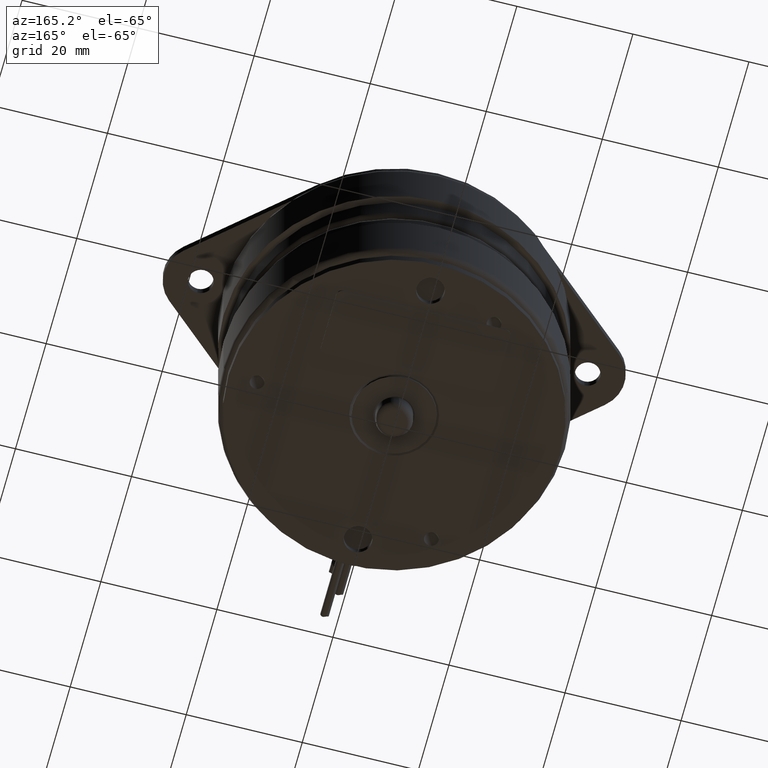
[diagram: clean part render]
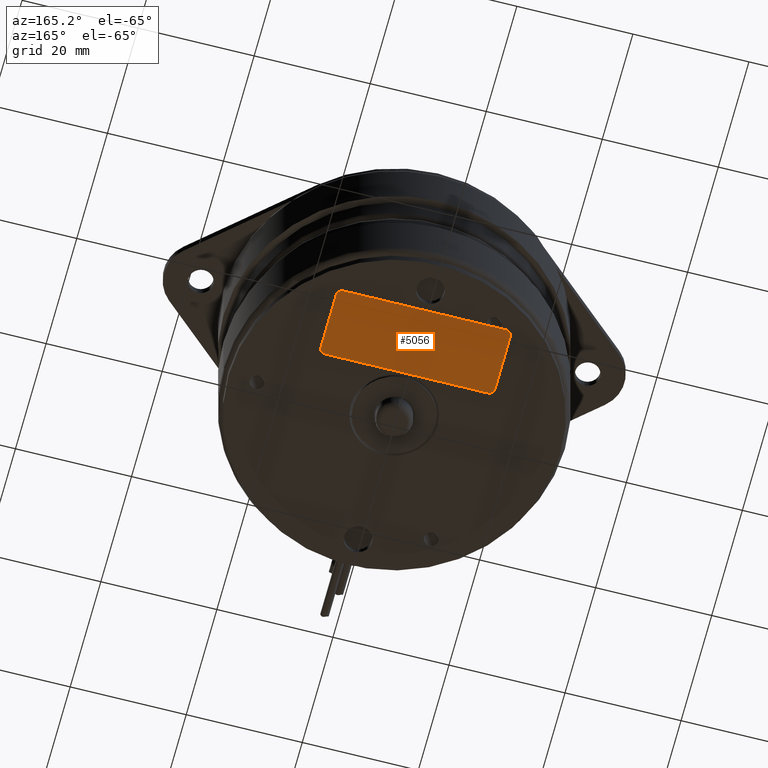
[diagram: same view with one face highlighted and labeled with its STEP entity id]
A machine part, auxiliary view. The second image highlights one B-rep face of the part: STEP entity #5056.
In plain terms, the highlighted planar face has unit normal (0, 0, 1).
Its self-contained STEP definition (entity closure, byte-faithful):
#4897=CARTESIAN_POINT('',(1.4E1,-5.E0,0.E0));
#4898=DIRECTION('',(0.E0,0.E0,1.E0));
#4899=DIRECTION('',(0.E0,-1.E0,0.E0));
#4900=AXIS2_PLACEMENT_3D('',#4897,#4898,#4899);
#4902=CARTESIAN_POINT('',(1.4E1,5.E0,0.E0));
#4903=DIRECTION('',(0.E0,0.E0,1.E0));
#4904=DIRECTION('',(1.E0,0.E0,0.E0));
#4905=AXIS2_PLACEMENT_3D('',#4902,#4903,#4904);
#4907=CARTESIAN_POINT('',(-1.4E1,5.E0,0.E0));
#4908=DIRECTION('',(0.E0,0.E0,1.E0));
#4909=DIRECTION('',(0.E0,1.E0,0.E0));
#4910=AXIS2_PLACEMENT_3D('',#4907,#4908,#4909);
#4912=CARTESIAN_POINT('',(-1.4E1,-5.E0,0.E0));
#4913=DIRECTION('',(0.E0,0.E0,1.E0));
#4914=DIRECTION('',(-1.E0,-2.664535259100E-14,0.E0));
#4915=AXIS2_PLACEMENT_3D('',#4912,#4913,#4914);
#4917=DIRECTION('',(-1.E0,0.E0,0.E0));
#4918=VECTOR('',#4917,2.8E1);
#4919=CARTESIAN_POINT('',(1.4E1,-6.E0,0.E0));
#4920=LINE('',#4919,#4918);
#4929=DIRECTION('',(0.E0,1.E0,0.E0));
#4930=VECTOR('',#4929,1.E1);
#4931=CARTESIAN_POINT('',(-1.5E1,-5.E0,0.E0));
#4932=LINE('',#4931,#4930);
#4941=DIRECTION('',(1.E0,0.E0,0.E0));
#4942=VECTOR('',#4941,2.8E1);
#4943=CARTESIAN_POINT('',(-1.4E1,6.E0,0.E0));
#4944=LINE('',#4943,#4942);
#4953=DIRECTION('',(0.E0,-1.E0,0.E0));
#4954=VECTOR('',#4953,1.E1);
#4955=CARTESIAN_POINT('',(1.5E1,5.E0,0.E0));
#4956=LINE('',#4955,#4954);
#5001=CARTESIAN_POINT('',(1.4E1,-6.E0,0.E0));
#5002=CARTESIAN_POINT('',(-1.4E1,-6.E0,0.E0));
#5003=VERTEX_POINT('',#5001);
#5004=VERTEX_POINT('',#5002);
#5005=CARTESIAN_POINT('',(1.5E1,-5.E0,0.E0));
#5006=VERTEX_POINT('',#5005);
#5007=CARTESIAN_POINT('',(1.5E1,5.E0,0.E0));
#5008=VERTEX_POINT('',#5007);
#5009=CARTESIAN_POINT('',(1.4E1,6.E0,0.E0));
#5010=VERTEX_POINT('',#5009);
#5011=CARTESIAN_POINT('',(-1.4E1,6.E0,0.E0));
#5012=VERTEX_POINT('',#5011);
#5013=CARTESIAN_POINT('',(-1.5E1,5.E0,0.E0));
#5014=VERTEX_POINT('',#5013);
#5015=CARTESIAN_POINT('',(-1.5E1,-5.E0,0.E0));
#5016=VERTEX_POINT('',#5015);
#5033=CARTESIAN_POINT('',(0.E0,0.E0,0.E0));
#5034=DIRECTION('',(0.E0,0.E0,1.E0));
#5035=DIRECTION('',(1.E0,0.E0,0.E0));
#5036=AXIS2_PLACEMENT_3D('',#5033,#5034,#5035);
#5037=PLANE('',#5036);
#5039=ORIENTED_EDGE('',*,*,#5038,.F.);
#5041=ORIENTED_EDGE('',*,*,#5040,.T.);
#5043=ORIENTED_EDGE('',*,*,#5042,.F.);
#5045=ORIENTED_EDGE('',*,*,#5044,.T.);
#5047=ORIENTED_EDGE('',*,*,#5046,.F.);
#5049=ORIENTED_EDGE('',*,*,#5048,.T.);
#5051=ORIENTED_EDGE('',*,*,#5050,.F.);
#5053=ORIENTED_EDGE('',*,*,#5052,.T.);
#5054=EDGE_LOOP('',(#5039,#5041,#5043,#5045,#5047,#5049,#5051,#5053));
#5055=FACE_OUTER_BOUND('',#5054,.F.);
#5056=ADVANCED_FACE('',(#5055),#5037,.F.);
#4901=CIRCLE('',#4900,1.E0);
#4906=CIRCLE('',#4905,1.E0);
#4911=CIRCLE('',#4910,1.E0);
#4916=CIRCLE('',#4915,1.E0);
#5038=EDGE_CURVE('',#5003,#5004,#4920,.T.);
#5040=EDGE_CURVE('',#5003,#5006,#4901,.T.);
#5042=EDGE_CURVE('',#5008,#5006,#4956,.T.);
#5044=EDGE_CURVE('',#5008,#5010,#4906,.T.);
#5046=EDGE_CURVE('',#5012,#5010,#4944,.T.);
#5048=EDGE_CURVE('',#5012,#5014,#4911,.T.);
#5050=EDGE_CURVE('',#5016,#5014,#4932,.T.);
#5052=EDGE_CURVE('',#5016,#5004,#4916,.T.);